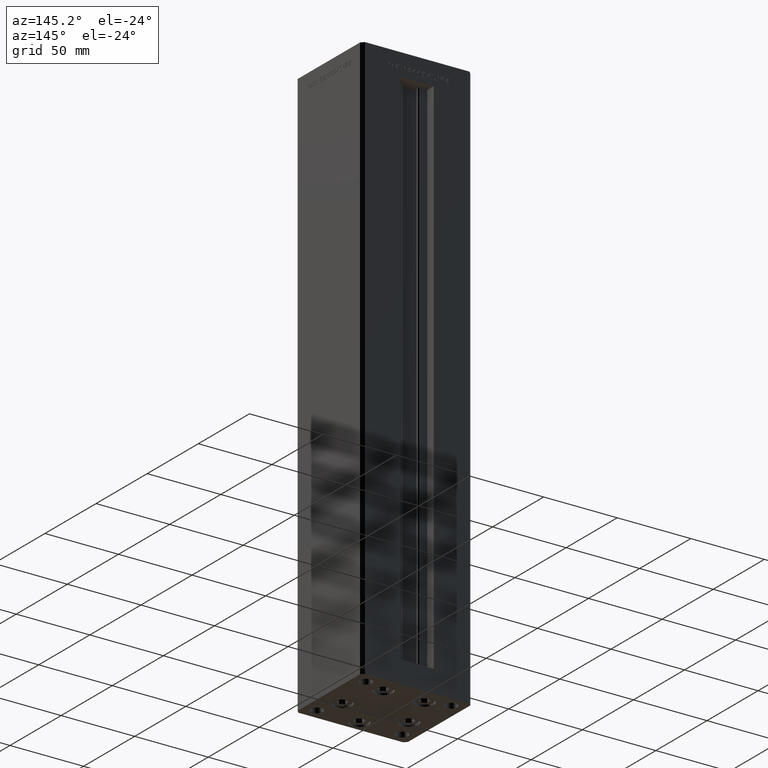
[diagram: clean part render]
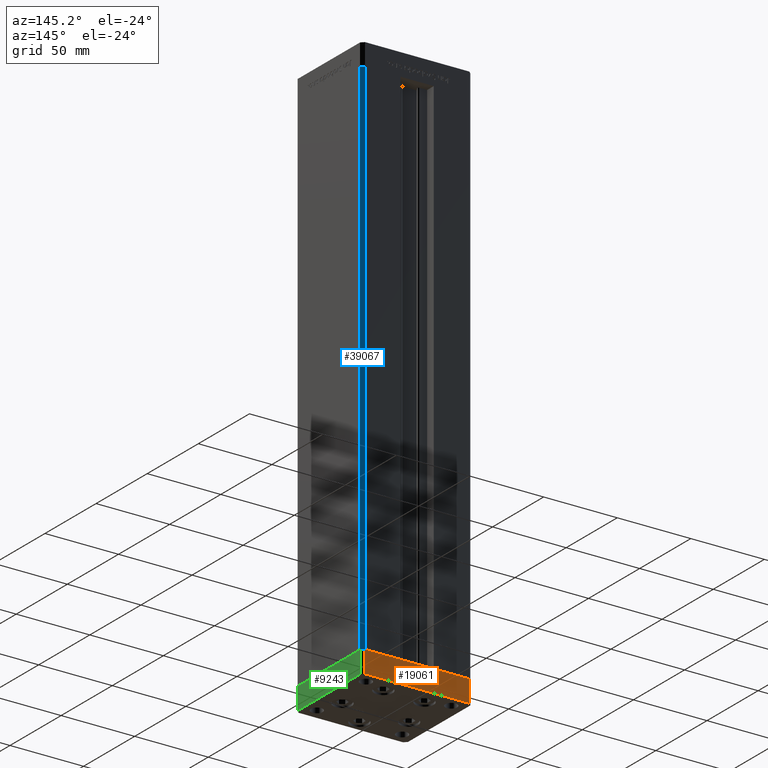
[diagram: same view with three faces highlighted in distinct colors, each labeled with its STEP entity id]
A machine part, auxiliary view with three faces highlighted in distinct colors.
Their STEP definitions:

[orange] entity #19061 — the highlighted planar face has unit normal (0, 1, 0).
#736 = PLANE ( 'NONE',  #15291 ) ;
#1779 = VERTEX_POINT ( 'NONE', #19455 ) ;
#4260 = DIRECTION ( 'NONE',  ( -1.000000000000000000, -1.954618001100629052E-16, 0.000000000000000000 ) ) ;
#4758 = LINE ( 'NONE', #36946, #16695 ) ;
#5956 = CARTESIAN_POINT ( 'NONE',  ( -35.50000000000002842, 32.49999999999999289, -15.00000000000000000 ) ) ;
#7929 = DIRECTION ( 'NONE',  ( 0.000000000000000000, 0.000000000000000000, 1.000000000000000000 ) ) ;
#8391 = DIRECTION ( 'NONE',  ( -1.954618001100629052E-16, 1.000000000000000000, 0.000000000000000000 ) ) ;
#9374 = ORIENTED_EDGE ( 'NONE', *, *, #24360, .T. ) ;
#13298 = LINE ( 'NONE', #49459, #47684 ) ;
#15291 = AXIS2_PLACEMENT_3D ( 'NONE', #32932, #8391, #21054 ) ;
#16695 = VECTOR ( 'NONE', #7929, 1000.000000000000000 ) ;
#19061 = ADVANCED_FACE ( 'NONE', ( #45053 ), #736, .T. ) ;
#19455 = CARTESIAN_POINT ( 'NONE',  ( 35.49999999999992184, 32.50000000000000711, 0.000000000000000000 ) ) ;
#21054 = DIRECTION ( 'NONE',  ( -1.000000000000000000, -1.954618001100629052E-16, 0.000000000000000000 ) ) ;
#24360 = EDGE_CURVE ( 'NONE', #42976, #33138, #34449, .T. ) ;
#26595 = VERTEX_POINT ( 'NONE', #48795 ) ;
#27760 = CARTESIAN_POINT ( 'NONE',  ( 35.49999999999992184, 32.50000000000000711, 0.000000000000000000 ) ) ;
#29667 = DIRECTION ( 'NONE',  ( -1.000000000000000000, -1.954618001100629052E-16, 0.000000000000000000 ) ) ;
#29994 = EDGE_CURVE ( 'NONE', #1779, #33138, #40393, .T. ) ;
#32932 = CARTESIAN_POINT ( 'NONE',  ( 35.49999999999992184, 32.50000000000000711, -15.00000000000000000 ) ) ;
#33138 = VERTEX_POINT ( 'NONE', #41798 ) ;
#34404 = CARTESIAN_POINT ( 'NONE',  ( -35.50000000000002842, 32.49999999999999289, -15.00000000000000000 ) ) ;
#34449 = LINE ( 'NONE', #5956, #46458 ) ;
#34765 = EDGE_LOOP ( 'NONE', ( #46621, #42568, #52228, #9374 ) ) ;
#35642 = VECTOR ( 'NONE', #4260, 1000.000000000000000 ) ;
#36946 = CARTESIAN_POINT ( 'NONE',  ( 35.49999999999992184, 32.50000000000000711, -15.00000000000000000 ) ) ;
#38532 = EDGE_CURVE ( 'NONE', #26595, #42976, #13298, .T. ) ;
#40393 = LINE ( 'NONE', #27760, #35642 ) ;
#41798 = CARTESIAN_POINT ( 'NONE',  ( -35.50000000000002842, 32.49999999999999289, 0.000000000000000000 ) ) ;
#42568 = ORIENTED_EDGE ( 'NONE', *, *, #44423, .F. ) ;
#42976 = VERTEX_POINT ( 'NONE', #34404 ) ;
#44423 = EDGE_CURVE ( 'NONE', #26595, #1779, #4758, .T. ) ;
#45053 = FACE_OUTER_BOUND ( 'NONE', #34765, .T. ) ;
#46458 = VECTOR ( 'NONE', #49777, 1000.000000000000000 ) ;
#46621 = ORIENTED_EDGE ( 'NONE', *, *, #29994, .F. ) ;
#47684 = VECTOR ( 'NONE', #29667, 1000.000000000000000 ) ;
#48795 = CARTESIAN_POINT ( 'NONE',  ( 35.49999999999992184, 32.50000000000000711, -15.00000000000000000 ) ) ;
#49459 = CARTESIAN_POINT ( 'NONE',  ( 35.49999999999992184, 32.50000000000000711, -15.00000000000000000 ) ) ;
#49777 = DIRECTION ( 'NONE',  ( 0.000000000000000000, 0.000000000000000000, 1.000000000000000000 ) ) ;
#52228 = ORIENTED_EDGE ( 'NONE', *, *, #38532, .T. ) ;

[blue] entity #39067 — the highlighted planar face has unit normal (0.7071, 0.7071, 0).
#2547 = PLANE ( 'NONE',  #24090 ) ;
#5849 = CARTESIAN_POINT ( 'NONE',  ( 35.50000000000000000, 32.49999999999999289, 0.000000000000000000 ) ) ;
#6015 = VERTEX_POINT ( 'NONE', #9348 ) ;
#6792 = VECTOR ( 'NONE', #7958, 1000.000000000000114 ) ;
#7958 = DIRECTION ( 'NONE',  ( 0.7071067811865500152, -0.7071067811865451302, 0.000000000000000000 ) ) ;
#8756 = CARTESIAN_POINT ( 'NONE',  ( 35.50000000000000000, 32.49999999999999289, 0.000000000000000000 ) ) ;
#9348 = CARTESIAN_POINT ( 'NONE',  ( 37.50000000000000711, 30.50000000000000000, 356.0000000000000000 ) ) ;
#9401 = VERTEX_POINT ( 'NONE', #31442 ) ;
#10198 = DIRECTION ( 'NONE',  ( 0.7071067811865451302, 0.7071067811865500152, -0.000000000000000000 ) ) ;
#12090 = EDGE_CURVE ( 'NONE', #43286, #22020, #44902, .T. ) ;
#12103 = EDGE_LOOP ( 'NONE', ( #49977, #24897, #46446, #29744 ) ) ;
#13352 = CARTESIAN_POINT ( 'NONE',  ( 37.50000000000000711, 30.50000000000000000, 356.0000000000000000 ) ) ;
#13633 = FACE_OUTER_BOUND ( 'NONE', #12103, .T. ) ;
#17205 = CARTESIAN_POINT ( 'NONE',  ( 35.50000000000000000, 32.49999999999999289, 356.0000000000000000 ) ) ;
#22020 = VERTEX_POINT ( 'NONE', #34122 ) ;
#22086 = EDGE_CURVE ( 'NONE', #9401, #6015, #31472, .T. ) ;
#23451 = VECTOR ( 'NONE', #44109, 1000.000000000000114 ) ;
#24090 = AXIS2_PLACEMENT_3D ( 'NONE', #34470, #10198, #41592 ) ;
#24897 = ORIENTED_EDGE ( 'NONE', *, *, #50452, .F. ) ;
#24964 = DIRECTION ( 'NONE',  ( -0.000000000000000000, -0.000000000000000000, -1.000000000000000000 ) ) ;
#27249 = VECTOR ( 'NONE', #24964, 1000.000000000000000 ) ;
#29324 = VECTOR ( 'NONE', #44633, 1000.000000000000000 ) ;
#29744 = ORIENTED_EDGE ( 'NONE', *, *, #31243, .T. ) ;
#31243 = EDGE_CURVE ( 'NONE', #6015, #22020, #45283, .T. ) ;
#31442 = CARTESIAN_POINT ( 'NONE',  ( 35.50000000000000000, 32.49999999999999289, 356.0000000000000000 ) ) ;
#31472 = LINE ( 'NONE', #39637, #6792 ) ;
#34122 = CARTESIAN_POINT ( 'NONE',  ( 37.50000000000000711, 30.50000000000000000, 0.000000000000000000 ) ) ;
#34470 = CARTESIAN_POINT ( 'NONE',  ( 35.50000000000000000, 32.49999999999999289, 356.0000000000000000 ) ) ;
#39067 = ADVANCED_FACE ( 'NONE', ( #13633 ), #2547, .T. ) ;
#39637 = CARTESIAN_POINT ( 'NONE',  ( 35.50000000000000000, 32.49999999999999289, 356.0000000000000000 ) ) ;
#41592 = DIRECTION ( 'NONE',  ( -0.7071067811865500152, 0.7071067811865451302, 0.000000000000000000 ) ) ;
#43286 = VERTEX_POINT ( 'NONE', #5849 ) ;
#44109 = DIRECTION ( 'NONE',  ( 0.7071067811865500152, -0.7071067811865451302, 0.000000000000000000 ) ) ;
#44633 = DIRECTION ( 'NONE',  ( -0.000000000000000000, -0.000000000000000000, -1.000000000000000000 ) ) ;
#44902 = LINE ( 'NONE', #8756, #23451 ) ;
#45150 = LINE ( 'NONE', #17205, #29324 ) ;
#45283 = LINE ( 'NONE', #13352, #27249 ) ;
#46446 = ORIENTED_EDGE ( 'NONE', *, *, #22086, .T. ) ;
#49977 = ORIENTED_EDGE ( 'NONE', *, *, #12090, .F. ) ;
#50452 = EDGE_CURVE ( 'NONE', #9401, #43286, #45150, .T. ) ;

[green] entity #9243 — the highlighted planar face has unit normal (1, -0, 0).
#2771 = CARTESIAN_POINT ( 'NONE',  ( -37.50000000000001421, 30.49999999999998579, -15.00000000000000000 ) ) ;
#5399 = DIRECTION ( 'NONE',  ( 0.000000000000000000, 0.000000000000000000, 1.000000000000000000 ) ) ;
#6871 = ORIENTED_EDGE ( 'NONE', *, *, #14213, .F. ) ;
#7915 = EDGE_CURVE ( 'NONE', #13895, #38318, #42314, .T. ) ;
#8094 = DIRECTION ( 'NONE',  ( 0.000000000000000000, 0.000000000000000000, 1.000000000000000000 ) ) ;
#9193 = ORIENTED_EDGE ( 'NONE', *, *, #36028, .F. ) ;
#9243 = ADVANCED_FACE ( 'NONE', ( #49942 ), #21697, .T. ) ;
#10363 = VERTEX_POINT ( 'NONE', #47049 ) ;
#10415 = DIRECTION ( 'NONE',  ( 4.550094363217855288E-16, -1.000000000000000000, 0.000000000000000000 ) ) ;
#11719 = VECTOR ( 'NONE', #8094, 1000.000000000000000 ) ;
#13303 = VERTEX_POINT ( 'NONE', #36062 ) ;
#13780 = CARTESIAN_POINT ( 'NONE',  ( -37.50000000000001421, 30.49999999999998579, -15.00000000000000000 ) ) ;
#13895 = VERTEX_POINT ( 'NONE', #39830 ) ;
#14213 = EDGE_CURVE ( 'NONE', #10363, #13303, #20252, .T. ) ;
#15206 = CARTESIAN_POINT ( 'NONE',  ( -37.49999999999998579, -30.50000000000001421, 0.000000000000000000 ) ) ;
#20252 = LINE ( 'NONE', #44239, #11719 ) ;
#21697 = PLANE ( 'NONE',  #35169 ) ;
#22892 = ORIENTED_EDGE ( 'NONE', *, *, #7915, .T. ) ;
#23385 = LINE ( 'NONE', #51626, #29038 ) ;
#23521 = DIRECTION ( 'NONE',  ( 4.550094363217855288E-16, -1.000000000000000000, 0.000000000000000000 ) ) ;
#28323 = EDGE_CURVE ( 'NONE', #10363, #13895, #51055, .T. ) ;
#28834 = VECTOR ( 'NONE', #10415, 1000.000000000000000 ) ;
#28919 = ORIENTED_EDGE ( 'NONE', *, *, #28323, .T. ) ;
#29038 = VECTOR ( 'NONE', #32078, 1000.000000000000000 ) ;
#29875 = DIRECTION ( 'NONE',  ( -1.000000000000000000, -4.550094363217855288E-16, 0.000000000000000000 ) ) ;
#32078 = DIRECTION ( 'NONE',  ( 4.550094363217855288E-16, -1.000000000000000000, 0.000000000000000000 ) ) ;
#34680 = CARTESIAN_POINT ( 'NONE',  ( -37.49999999999998579, -30.50000000000001421, -15.00000000000000000 ) ) ;
#35169 = AXIS2_PLACEMENT_3D ( 'NONE', #13780, #29875, #23521 ) ;
#36028 = EDGE_CURVE ( 'NONE', #13303, #38318, #23385, .T. ) ;
#36062 = CARTESIAN_POINT ( 'NONE',  ( -37.50000000000001421, 30.49999999999998579, 0.000000000000000000 ) ) ;
#38318 = VERTEX_POINT ( 'NONE', #15206 ) ;
#39341 = VECTOR ( 'NONE', #5399, 1000.000000000000000 ) ;
#39830 = CARTESIAN_POINT ( 'NONE',  ( -37.49999999999998579, -30.50000000000001421, -15.00000000000000000 ) ) ;
#42314 = LINE ( 'NONE', #34680, #39341 ) ;
#44239 = CARTESIAN_POINT ( 'NONE',  ( -37.50000000000001421, 30.49999999999998579, -15.00000000000000000 ) ) ;
#47049 = CARTESIAN_POINT ( 'NONE',  ( -37.50000000000001421, 30.49999999999998579, -15.00000000000000000 ) ) ;
#47285 = EDGE_LOOP ( 'NONE', ( #9193, #6871, #28919, #22892 ) ) ;
#49942 = FACE_OUTER_BOUND ( 'NONE', #47285, .T. ) ;
#51055 = LINE ( 'NONE', #2771, #28834 ) ;
#51626 = CARTESIAN_POINT ( 'NONE',  ( -37.50000000000001421, 30.49999999999998579, 0.000000000000000000 ) ) ;